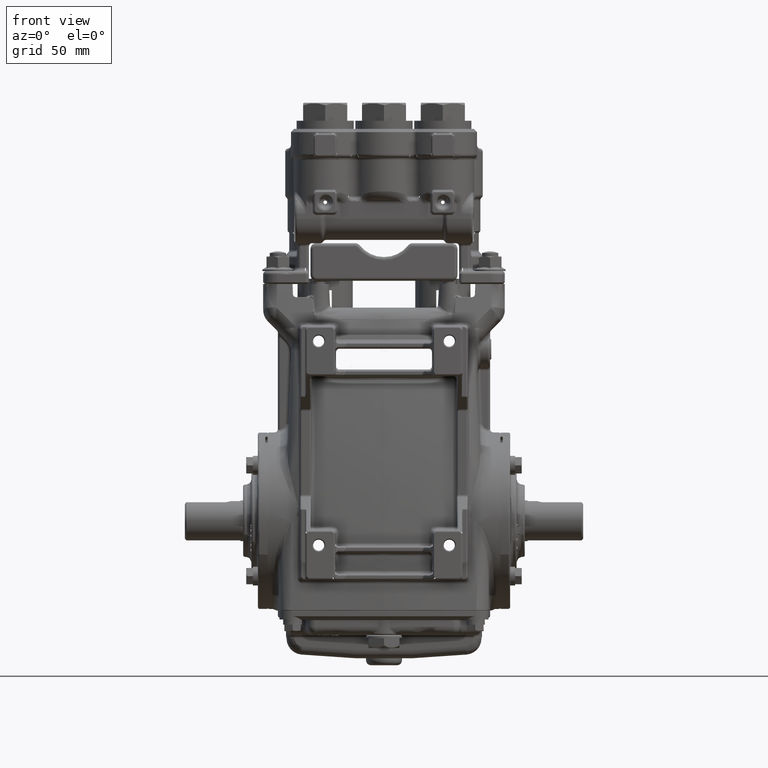
[diagram: clean part render]
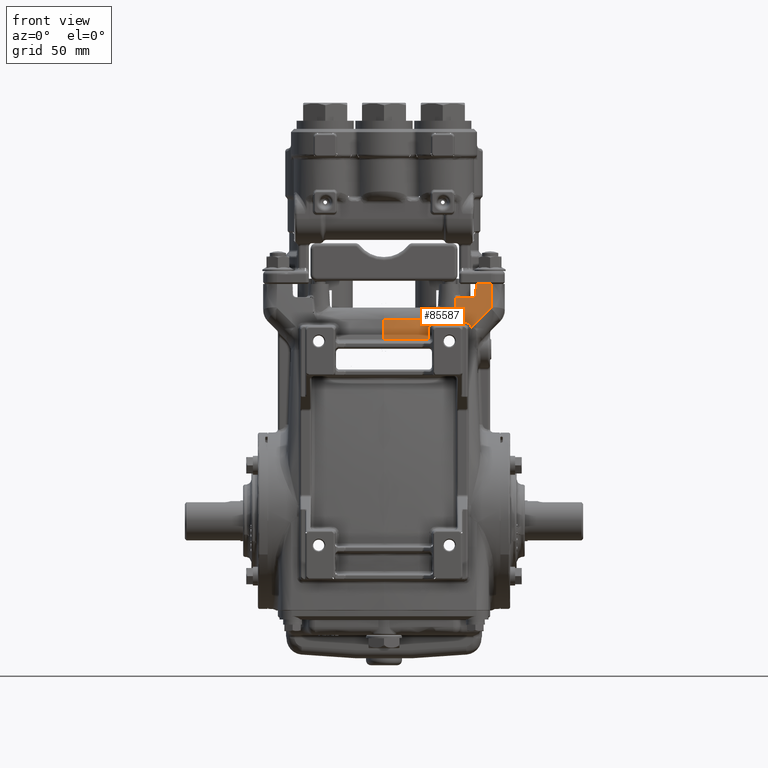
[diagram: same view with one face highlighted and labeled with its STEP entity id]
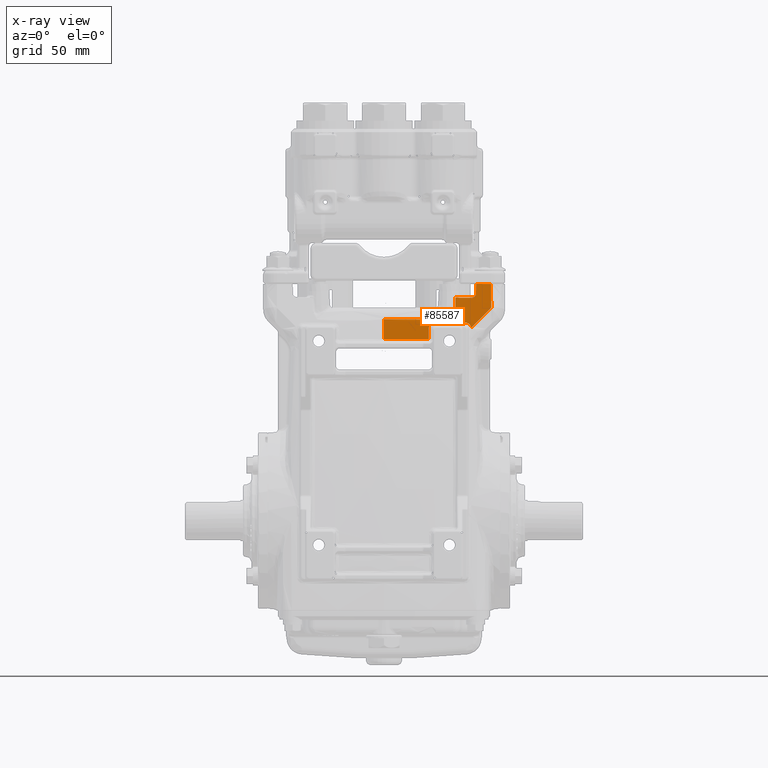
[diagram: x-ray of the same camera — body ghosted, the highlighted face saturated]
A machine part, front view. The second image highlights one B-rep face of the part: STEP entity #85587.
The next image is the same camera in x-ray: the body ghosted, the highlighted face saturated — about 0% of this face is hidden behind the body in this view.
In plain terms, the highlighted face is a freeform B-spline surface patch.
Its self-contained STEP definition (entity closure, byte-faithful):
#237 = CARTESIAN_POINT ( 'NONE',  ( 1.695447004468811025, -1.422108094650450072, 4.988307466326080686 ) ) ;
#280 = CARTESIAN_POINT ( 'NONE',  ( 2.075517072304949195, -1.453196763443851847, 4.717388431576400087 ) ) ;
#408 = CARTESIAN_POINT ( 'NONE',  ( 2.105072701590586792, -1.463353995759773651, 4.654363746525441492 ) ) ;
#427 = EDGE_CURVE ( 'NONE', #68387, #84993, #65699, .T. ) ;
#478 = CARTESIAN_POINT ( 'NONE',  ( 5.353948352643644109E-17, -1.600492787119488725, 4.379707716610888646 ) ) ;
#525 = CARTESIAN_POINT ( 'NONE',  ( 0.2386529819870311930, -2.400899943846322770, -2.165354330708661568 ) ) ;
#830 = CARTESIAN_POINT ( 'NONE',  ( 1.747981815849881215, -1.334178343351362095, 5.386980903244986685 ) ) ;
#844 = CARTESIAN_POINT ( 'NONE',  ( 1.970108780992997133, -1.448916258621498754, 4.775992038015377084 ) ) ;
#1099 = CARTESIAN_POINT ( 'NONE',  ( 0.7593239362273180859, -2.393134938270132572, -2.165354330708661568 ) ) ;
#1218 = VERTEX_POINT ( 'NONE', #478 ) ;
#1307 = CARTESIAN_POINT ( 'NONE',  ( 2.225298927775545721, -1.240190851378258241, 5.708661417322828946 ) ) ;
#1681 = CARTESIAN_POINT ( 'NONE',  ( -1.120923444174017236, -1.894876309026141348, 3.127925920230727019 ) ) ;
#2010 = CARTESIAN_POINT ( 'NONE',  ( 2.093934674572589749, -1.457693663488794034, 4.687614378569230134 ) ) ;
#2254 = CARTESIAN_POINT ( 'NONE',  ( -0.3931574066697895442, -2.399831511276513840, -2.165354330708661568 ) ) ;
#2476 = CARTESIAN_POINT ( 'NONE',  ( 1.974696223463358269, -1.324438073273989103, 5.378110723654810243 ) ) ;
#2516 = CARTESIAN_POINT ( 'NONE',  ( 9.581174933279260502E-09, -1.532602765210235862, 4.700192344501700425 ) ) ;
#2731 = B_SPLINE_CURVE_WITH_KNOTS ( 'NONE', 3,
 ( #113924, #104176, #51211, #26409 ),
 .UNSPECIFIED., .F., .F.,
 ( 4, 4 ),
 ( 5.763878168445254235E-17, 0.001893212023232310626 ),
 .UNSPECIFIED. ) ;
#2931 = EDGE_CURVE ( 'NONE', #59065, #1218, #74819, .T. ) ;
#3440 = B_SPLINE_CURVE_WITH_KNOTS ( 'NONE', 3,
 ( #22520, #110629, #92242, #24218, #31742, #57155, #100878, #57707, #30619, #58848, #40940, #49040, #66898, #59398, #84126, #41491, #111183, #48454 ),
 .UNSPECIFIED., .F., .F.,
 ( 4, 2, 2, 2, 2, 2, 2, 2, 4 ),
 ( 0.000000000000000000, 0.0007965545123860078534, 0.001593109024772015707, 0.002389663537158023560, 0.003186218049544031414, 0.003982772561930039701, 0.004779327074316047121, 0.005575881586702054540, 0.006372436099088062827 ),
 .UNSPECIFIED. ) ;
#3661 = CARTESIAN_POINT ( 'NONE',  ( 1.706872822841963178, -1.415508902010688130, 5.016785960608056705 ) ) ;
#3795 = CARTESIAN_POINT ( 'NONE',  ( 2.217687854067777131, -1.287471127560731343, 5.487445985151845562 ) ) ;
#3939 = CARTESIAN_POINT ( 'NONE',  ( 2.686370785910845438, -2.084068835673706488, 0.4897784465330251580 ) ) ;
#5068 = CARTESIAN_POINT ( 'NONE',  ( 2.369125755900590491, -1.232386614232148236, 5.708661417322822729 ) ) ;
#5452 = B_SPLINE_CURVE_WITH_KNOTS ( 'NONE', 3,
 ( #86285, #84591, #111082, #58739 ),
 .UNSPECIFIED., .F., .F.,
 ( 4, 4 ),
 ( 0.000000000000000000, 0.01840378158235755901 ),
 .UNSPECIFIED. ) ;
#5457 = ORIENTED_EDGE ( 'NONE', *, *, #8755, .T. ) ;
#5825 = CARTESIAN_POINT ( 'NONE',  ( 1.722704174765727902, -1.360497997444408247, 5.271718377526075194 ) ) ;
#6324 = CARTESIAN_POINT ( 'NONE',  ( -2.523490070267367269, -1.223445930611730459, 5.708661417322837828 ) ) ;
#7063 = CARTESIAN_POINT ( 'NONE',  ( 1.073092921287555068, -1.577856869924249450, 4.380521288988022732 ) ) ;
#7443 = B_SPLINE_CURVE_WITH_KNOTS ( 'NONE', 3,
 ( #69285, #50860, #104396, #95738 ),
 .UNSPECIFIED., .F., .F.,
 ( 4, 4 ),
 ( 0.000000000000000000, 0.01443161753748584304 ),
 .UNSPECIFIED. ) ;
#7460 = CARTESIAN_POINT ( 'NONE',  ( -2.913385826771640374, -2.265344068576862213, -2.165354330708661124 ) ) ;
#8584 = CARTESIAN_POINT ( 'NONE',  ( -1.798349607840901365, -2.349958156103969742, -2.165354330708661124 ) ) ;
#8755 = EDGE_CURVE ( 'NONE', #1218, #52566, #25717, .T. ) ;
#8837 = VERTEX_POINT ( 'NONE', #106197 ) ;
#8893 = CARTESIAN_POINT ( 'NONE',  ( 1.723487483204693138, -1.340369068419941634, 5.363991443585114816 ) ) ;
#9158 = CARTESIAN_POINT ( 'NONE',  ( -1.062078202322136677, -2.384053432892072166, -2.165354330708661124 ) ) ;
#9724 = CARTESIAN_POINT ( 'NONE',  ( -0.3973269798802264163, -2.297068369690841383, 0.4897784465330322634 ) ) ;
#10036 = CARTESIAN_POINT ( 'NONE',  ( 2.105072701590586792, -1.463353995759773651, 4.654363746525441492 ) ) ;
#10287 = CARTESIAN_POINT ( 'NONE',  ( 1.438329920831149300, -2.368889522099581146, -2.165354330708661568 ) ) ;
#10305 = CARTESIAN_POINT ( 'NONE',  ( 1.721600411979225642, -1.396638761318250932, 5.102518274922981156 ) ) ;
#10469 = CARTESIAN_POINT ( 'NONE',  ( 2.217191579026701387, -1.290516498742154905, 5.473030347281832242 ) ) ;
#10609 = CARTESIAN_POINT ( 'NONE',  ( 2.203232500324834309, -1.301296428483942558, 5.425410671452346456 ) ) ;
#10832 = EDGE_CURVE ( 'NONE', #57125, #29284, #3440, .T. ) ;
#10874 = CARTESIAN_POINT ( 'NONE',  ( -1.741295670112182004, -1.263397575016607766, 5.708661417322819176 ) ) ;
#10998 = EDGE_LOOP ( 'NONE', ( #29271, #54080, #104098, #44061, #5457, #55631, #40922, #48487, #51431, #67671, #27820, #28957, #64570, #93263, #61188, #42133, #76089, #97087, #71932, #25310, #88906, #93702 ) ) ;
#11099 = CARTESIAN_POINT ( 'NONE',  ( 2.105718740610707407, -1.316990519298782747, 5.378053934162385197 ) ) ;
#11543 = EDGE_CURVE ( 'NONE', #73235, #68387, #34833, .T. ) ;
#11970 = VERTEX_POINT ( 'NONE', #35885 ) ;
#12027 = CARTESIAN_POINT ( 'NONE',  ( 2.122645617507046278, -1.458368836832121485, 4.673282959559445615 ) ) ;
#12182 = B_SPLINE_CURVE_WITH_KNOTS ( 'NONE', 3,
 ( #1307, #97539, #73348, #26703 ),
 .UNSPECIFIED., .F., .F.,
 ( 4, 4 ),
 ( 0.8818015310196152257, 0.9427955619806043241 ),
 .UNSPECIFIED. ) ;
#12566 = CARTESIAN_POINT ( 'NONE',  ( 2.848460234453432882, -2.059014184365170586, 0.4897784465330218828 ) ) ;
#13344 = CARTESIAN_POINT ( 'NONE',  ( 1.814286184004190394, -1.332820085805407784, 5.378174502459382111 ) ) ;
#13681 = CARTESIAN_POINT ( 'NONE',  ( 1.964095400574094485, -1.820132787096655713, 3.127925920230754109 ) ) ;
#13991 = CARTESIAN_POINT ( 'NONE',  ( 1.072586018474553704, -1.540557774957428183, 4.562259323787783316 ) ) ;
#14184 = CARTESIAN_POINT ( 'NONE',  ( 2.586414713598422566, -1.330825672831741580, 5.146055740934847300 ) ) ;
#14396 = CARTESIAN_POINT ( 'NONE',  ( -2.841641326625985009, -1.202961639721772391, 5.708661417322835163 ) ) ;
#14960 = CARTESIAN_POINT ( 'NONE',  ( -2.450684691601668241, -2.118214908375335881, 0.4897784465330197179 ) ) ;
#15143 = EDGE_CURVE ( 'NONE', #84993, #52751, #39953, .T. ) ;
#15468 = EDGE_CURVE ( 'NONE', #29284, #73235, #5452, .T. ) ;
#15877 = CARTESIAN_POINT ( 'NONE',  ( 1.080392792477687269, -1.478895006806082657, 4.858076387095712434 ) ) ;
#17243 = CARTESIAN_POINT ( 'NONE',  ( 1.523571933390371225, -1.864023738764603477, 3.127925920230739010 ) ) ;
#17520 = CARTESIAN_POINT ( 'NONE',  ( 1.706872822841963178, -1.415508902010688130, 5.016785960608056705 ) ) ;
#17813 = CARTESIAN_POINT ( 'NONE',  ( -0.1449627675236092594, -1.299212598425193654, 5.708661417322835163 ) ) ;
#18230 = CARTESIAN_POINT ( 'NONE',  ( 2.224858536579188861, -1.242970063600507213, 5.695838293977645073 ) ) ;
#18237 = EDGE_CURVE ( 'NONE', #52566, #57125, #97054, .T. ) ;
#18388 = CARTESIAN_POINT ( 'NONE',  ( -1.150346110494639085, -1.283976514928853341, 5.708661417322789866 ) ) ;
#18946 = CARTESIAN_POINT ( 'NONE',  ( 1.742463560137305301, -1.843263351871661904, 3.127925920230746559 ) ) ;
#19219 = CARTESIAN_POINT ( 'NONE',  ( 1.710141671066009339, -1.413445833383627059, 5.025765057855136497 ) ) ;
#19242 = CARTESIAN_POINT ( 'NONE',  ( 2.150185035819121460, -1.313337084266615218, 5.382946699796166357 ) ) ;
#19521 = CARTESIAN_POINT ( 'NONE',  ( 0.1019499836553659500, -1.299212598425201870, 5.708661417322835163 ) ) ;
#21551 = CARTESIAN_POINT ( 'NONE',  ( 2.144018744286798395, -1.314089596595189757, 5.381104746999962885 ) ) ;
#21813 = CARTESIAN_POINT ( 'NONE',  ( 2.240980235268056564, -2.321187910974374269, -2.165354330708661568 ) ) ;
#22369 = CARTESIAN_POINT ( 'NONE',  ( 2.225298927775545721, -1.240190851378258241, 5.708661417322828946 ) ) ;
#22520 = CARTESIAN_POINT ( 'NONE',  ( 1.072431235905899394, -1.529109700601100519, 4.617170957768486517 ) ) ;
#22861 = CARTESIAN_POINT ( 'NONE',  ( 2.585437472689655625, -1.331889233755624291, 5.140939031673726234 ) ) ;
#23710 = CARTESIAN_POINT ( 'NONE',  ( 2.580421327975271240, -1.219814287179225243, 5.708661417322838716 ) ) ;
#23712 = EDGE_CURVE ( 'NONE', #102477, #87797, #93417, .T. ) ;
#24215 = CARTESIAN_POINT ( 'NONE',  ( -2.812979403157047642, -2.274754709963543675, -2.165354330708661124 ) ) ;
#24218 = CARTESIAN_POINT ( 'NONE',  ( 1.077261521428881652, -1.520411852318828361, 4.657784040469648446 ) ) ;
#24378 = CARTESIAN_POINT ( 'NONE',  ( 1.072950483581206926, -1.567414980036824446, 4.431965603632755268 ) ) ;
#25011 = CARTESIAN_POINT ( 'NONE',  ( 0.3578149186057127951, -1.600492783429321886, 4.379707716609932078 ) ) ;
#25310 = ORIENTED_EDGE ( 'NONE', *, *, #47983, .T. ) ;
#25477 = CARTESIAN_POINT ( 'NONE',  ( 1.793277183352211201, -1.333641000619514738, 5.379246555982696520 ) ) ;
#25669 = CARTESIAN_POINT ( 'NONE',  ( 1.726294129361458429, -1.338649076078404221, 5.371263982266716752 ) ) ;
#25717 = B_SPLINE_CURVE_WITH_KNOTS ( 'NONE', 3,
 ( #33660, #25011, #52113, #95279 ),
 .UNSPECIFIED., .F., .F.,
 ( 4, 4 ),
 ( 4.745017215521428820E-19, 0.02726535390388513599 ),
 .UNSPECIFIED. ) ;
#25804 = B_SPLINE_SURFACE_WITH_KNOTS ( 'NONE', 3, 3, ( 
 ( #7460, #51877, #85809, #32290 ),
 ( #24215, #93359, #50171, #14396 ),
 ( #49609, #84692, #67461, #102570 ),
 ( #93921, #14960, #85255, #6324 ),
 ( #41488, #80611, #61112, #96175 ),
 ( #35141, #26500, #70284, #28223 ),
 ( #8584, #105407, #27078, #97323 ),
 ( #114015, #107118, #96754, #10874 ),
 ( #45498, #63384, #61673, #98458 ),
 ( #9158, #88681, #1681, #18388 ),
 ( #89838, #88110, #37426, #89250 ),
 ( #2254, #9724, #36848, #46080 ),
 ( #44894, #62245, #79463, #17813 ),
 ( #54177, #72007, #44338, #19521 ),
 ( #525, #35702, #53025, #70844 ),
 ( #54746, #97902, #81180, #105970 ),
 ( #1099, #80026, #72569, #25932 ),
 ( #36280, #106540, #53608, #71435 ),
 ( #10287, #52439, #17243, #87523 ),
 ( #27651, #62830, #18946, #43770 ),
 ( #78897, #92093, #13681, #108250 ),
 ( #82299, #74252, #101291, #74811 ),
 ( #21813, #109914, #99037, #5068 ),
 ( #66199, #83979, #81741, #65634 ),
 ( #40222, #3939, #83410, #91537 ),
 ( #48312, #12566, #109352, #55327 ),
 ( #47765, #92651, #90411, #47205 ) ),
 .UNSPECIFIED., .F., .F., .F.,
 ( 4, 1, 1, 1, 1, 1, 1, 1, 1, 1, 1, 2, 1, 1, 1, 1, 1, 1, 1, 1, 1, 1, 1, 4 ),
 ( 4, 4 ),
 ( 0.1820721574386664487, 0.1959246563835279065, 0.2035427212275890407, 0.2193976784518300027, 0.2310405802590582147, 0.2359332488469739197, 0.2508238822397266254, 0.2638475608825300855, 0.2796596398469345934, 0.2995163485322877017, 0.3173264764016465178, 0.3410360787193327248, 0.3577107850873240125, 0.3637457220820375925, 0.3805901526646463529, 0.4065920388027236543, 0.4224714650153005291, 0.4387315542144890612, 0.4421836685404009204, 0.4588536976265763512, 0.4664841599499357505, 0.4748837514135769711, 0.4901004416486962612, 0.5000000000000002220 ),
 ( 0.000000000000000000, 1.000000000000000000 ),
 .UNSPECIFIED. ) ;
#25932 = CARTESIAN_POINT ( 'NONE',  ( 0.8095103919857099539, -1.292140362101247275, 5.708661417322844045 ) ) ;
#25945 = CARTESIAN_POINT ( 'NONE',  ( 1.782922231577828143, -1.333694683007381698, 5.381355294301616077 ) ) ;
#26409 = CARTESIAN_POINT ( 'NONE',  ( 1.711343548344323784, -1.412407386300849055, 5.030395126341209000 ) ) ;
#26500 = CARTESIAN_POINT ( 'NONE',  ( -2.037265628463426737, -2.172062645620671084, 0.4897784465330257131 ) ) ;
#26703 = CARTESIAN_POINT ( 'NONE',  ( 2.580421327975271240, -1.219814287179225243, 5.708661417322838716 ) ) ;
#26920 = CARTESIAN_POINT ( 'NONE',  ( 2.225299536755475760, -1.240202993220924421, 5.708660648073941246 ) ) ;
#27078 = CARTESIAN_POINT ( 'NONE',  ( -1.895214259565355164, -1.827571154474286530, 3.127925920230762102 ) ) ;
#27651 = CARTESIAN_POINT ( 'NONE',  ( 1.648708095812247754, -2.358238290425402450, -2.165354330708661568 ) ) ;
#27820 = ORIENTED_EDGE ( 'NONE', *, *, #15143, .T. ) ;
#28061 = CARTESIAN_POINT ( 'NONE',  ( 2.222212098191402863, -1.259520473002489815, 5.618902597148461631 ) ) ;
#28223 = CARTESIAN_POINT ( 'NONE',  ( -2.132997294791505460, -1.245100427256945474, 5.708661417322859144 ) ) ;
#28810 = CARTESIAN_POINT ( 'NONE',  ( 1.073092921287555068, -1.577856869924249450, 4.380521288988022732 ) ) ;
#28957 = ORIENTED_EDGE ( 'NONE', *, *, #77379, .T. ) ;
#29029 = CARTESIAN_POINT ( 'NONE',  ( 1.922276981058850698, -1.327230367781236042, 5.378131974289340533 ) ) ;
#29271 = ORIENTED_EDGE ( 'NONE', *, *, #105830, .T. ) ;
#29284 = VERTEX_POINT ( 'NONE', #91792 ) ;
#30619 = CARTESIAN_POINT ( 'NONE',  ( 1.110259968350603588, -1.505859197377566572, 4.720795264503578004 ) ) ;
#30730 = VERTEX_POINT ( 'NONE', #109300 ) ;
#30964 = CARTESIAN_POINT ( 'NONE',  ( 2.586363487242617332, -1.329823541424705491, 5.151270073071822608 ) ) ;
#31742 = CARTESIAN_POINT ( 'NONE',  ( 1.080195572947305394, -1.518222662354437258, 4.667661603721832364 ) ) ;
#32290 = CARTESIAN_POINT ( 'NONE',  ( -2.913385826771655474, -1.197969208711458178, 5.708661417322835163 ) ) ;
#32897 = CARTESIAN_POINT ( 'NONE',  ( 2.574975106018726922, -1.336104207299929847, 5.123366275014468840 ) ) ;
#32992 = EDGE_CURVE ( 'NONE', #33424, #74782, #50621, .T. ) ;
#33424 = VERTEX_POINT ( 'NONE', #108617 ) ;
#33660 = CARTESIAN_POINT ( 'NONE',  ( 5.353948352643644109E-17, -1.600492787119488725, 4.379707716610888646 ) ) ;
#34108 = CARTESIAN_POINT ( 'NONE',  ( 1.814286184004190394, -1.332820085805407784, 5.378174502459382111 ) ) ;
#34419 = CARTESIAN_POINT ( 'NONE',  ( 2.225299510298643479, -1.240203159225248930, 5.708659878825060652 ) ) ;
#34508 = B_SPLINE_CURVE_WITH_KNOTS ( 'NONE', 3,
 ( #25945, #94489, #61126, #68605 ),
 .UNSPECIFIED., .F., .F.,
 ( 4, 4 ),
 ( 0.000000000000000000, 0.0007962539155344857018 ),
 .UNSPECIFIED. ) ;
#34833 = B_SPLINE_CURVE_WITH_KNOTS ( 'NONE', 3,
 ( #97076, #44097, #844, #61440, #55083, #52783, #37178, #54499, #62581, #98795, #88998, #280, #35468, #71181, #2010, #70604, #81506, #10036 ),
 .UNSPECIFIED., .F., .F.,
 ( 4, 2, 2, 2, 2, 2, 2, 2, 4 ),
 ( 6.938893903907228378E-18, 0.0006760406778326393407, 0.001352081355665271743, 0.002028122033497904361, 0.002704162711330536546, 0.003380203389163168731, 0.004056244066995801784, 0.004732284744828433969, 0.005408325422661066154 ),
 .UNSPECIFIED. ) ;
#35141 = CARTESIAN_POINT ( 'NONE',  ( -1.989399371181372889, -2.338284998638616496, -2.165354330708661124 ) ) ;
#35468 = CARTESIAN_POINT ( 'NONE',  ( 2.080809879400427498, -1.454218590960656643, 4.710238014527305950 ) ) ;
#35702 = CARTESIAN_POINT ( 'NONE',  ( 0.2402441229366550357, -2.299342540392105505, 0.4897784465330115022 ) ) ;
#35885 = CARTESIAN_POINT ( 'NONE',  ( 1.814286184004190394, -1.332820085805407784, 5.378174502459382111 ) ) ;
#36018 = CARTESIAN_POINT ( 'NONE',  ( 1.736812986606233844, -1.335636033210475748, 5.382763689904396465 ) ) ;
#36280 = CARTESIAN_POINT ( 'NONE',  ( 1.099363582922382898, -2.382977130700381085, -2.165354330708661568 ) ) ;
#36581 = CARTESIAN_POINT ( 'NONE',  ( 2.216757264246910886, -1.293181653353143723, 5.460414511165049944 ) ) ;
#36848 = CARTESIAN_POINT ( 'NONE',  ( -0.4014957656440683587, -1.927885586440233778, 3.127925920230790080 ) ) ;
#37119 = CARTESIAN_POINT ( 'NONE',  ( -1.165462141680392853E-08, -1.567049787758275858, 4.540046112685075741 ) ) ;
#37178 = CARTESIAN_POINT ( 'NONE',  ( 2.020938564557486217, -1.448370912080410022, 4.761333360718126961 ) ) ;
#37426 = CARTESIAN_POINT ( 'NONE',  ( -0.7853088048963520196, -1.913828282296069494, 3.127925920230730128 ) ) ;
#37836 = CARTESIAN_POINT ( 'NONE',  ( 2.220446664038848716, -1.270478268821263246, 5.567595797694324666 ) ) ;
#38297 = CARTESIAN_POINT ( 'NONE',  ( 2.131857811152471527, -1.455898729892387111, 4.682448221176986891 ) ) ;
#39953 = B_SPLINE_CURVE_WITH_KNOTS ( 'NONE', 3,
 ( #38297, #58300, #43230, #32897 ),
 .UNSPECIFIED., .F., .F.,
 ( 4, 4 ),
 ( 0.000000000000000000, 0.01616670382802528477 ),
 .UNSPECIFIED. ) ;
#40222 = CARTESIAN_POINT ( 'NONE',  ( 2.664582750533178945, -2.288033759751159746, -2.165354330708661568 ) ) ;
#40922 = ORIENTED_EDGE ( 'NONE', *, *, #10832, .T. ) ;
#40940 = CARTESIAN_POINT ( 'NONE',  ( 1.132575402840494405, -1.500473300881341565, 4.742137572600174877 ) ) ;
#41488 = CARTESIAN_POINT ( 'NONE',  ( -2.189576524486962494, -2.325080261920545954, -2.165354330708661124 ) ) ;
#41491 = CARTESIAN_POINT ( 'NONE',  ( 1.208076077040557861, -1.490664904009200598, 4.774070189874325187 ) ) ;
#41618 = B_SPLINE_CURVE_WITH_KNOTS ( 'NONE', 3,
 ( #70086, #52812, #15877, #78122, #113801, #87304 ),
 .UNSPECIFIED., .F., .F.,
 ( 4, 2, 4 ),
 ( 0.002095153710632045169, 0.02267970435462860271, 0.04326425499862515678 ),
 .UNSPECIFIED. ) ;
#42133 = ORIENTED_EDGE ( 'NONE', *, *, #48555, .T. ) ;
#42577 = CARTESIAN_POINT ( 'NONE',  ( 1.850285873599028186, -1.331010898088781369, 5.378160739918143030 ) ) ;
#43230 = CARTESIAN_POINT ( 'NONE',  ( 2.427291514755221424, -1.376123651622198185, 4.976395197955953087 ) ) ;
#43770 = CARTESIAN_POINT ( 'NONE',  ( 1.789341252083286316, -1.261249471572276626, 5.708661417322813847 ) ) ;
#43904 = EDGE_CURVE ( 'NONE', #46235, #55681, #7443, .T. ) ;
#44050 = CARTESIAN_POINT ( 'NONE',  ( 1.620100908794973149, -1.453906116151964634, 4.855422552802820313 ) ) ;
#44061 = ORIENTED_EDGE ( 'NONE', *, *, #2931, .T. ) ;
#44097 = CARTESIAN_POINT ( 'NONE',  ( 1.961275411743053532, -1.449361632755252982, 4.776722778853954132 ) ) ;
#44338 = CARTESIAN_POINT ( 'NONE',  ( 0.1019719231317475494, -1.931427949591510096, 3.127925920230758550 ) ) ;
#44894 = CARTESIAN_POINT ( 'NONE',  ( -0.1450532115828236657, -2.401574803149604254, -2.165354330708661568 ) ) ;
#45498 = CARTESIAN_POINT ( 'NONE',  ( -1.345329668388606015, -2.372960332906651093, -2.165354330708661124 ) ) ;
#45771 = CARTESIAN_POINT ( 'NONE',  ( 5.353948352643644109E-17, -1.600492787119488725, 4.379707716610888646 ) ) ;
#45784 = CARTESIAN_POINT ( 'NONE',  ( 1.651769026602168289, -1.441304388503606537, 4.907781706576454184 ) ) ;
#46080 = CARTESIAN_POINT ( 'NONE',  ( -0.4056649939589589970, -1.297898323476696980, 5.708661417322884901 ) ) ;
#46235 = VERTEX_POINT ( 'NONE', #107837 ) ;
#46300 = CARTESIAN_POINT ( 'NONE',  ( 2.027109477794701409, -1.321530991777925212, 5.378088585514736231 ) ) ;
#46487 = CARTESIAN_POINT ( 'NONE',  ( 2.217191579026701387, -1.290516498742154905, 5.473030347281832242 ) ) ;
#47205 = CARTESIAN_POINT ( 'NONE',  ( 2.913385826771652809, -1.197969208711458178, 5.708661417322836940 ) ) ;
#47480 = CARTESIAN_POINT ( 'NONE',  ( 1.708654828045138352, -1.414479671960220841, 5.021227552740173294 ) ) ;
#47502 = CARTESIAN_POINT ( 'NONE',  ( 2.183041362756662718, -1.307478888481968138, 5.401584287586975286 ) ) ;
#47765 = CARTESIAN_POINT ( 'NONE',  ( 2.913385826771654141, -2.265344068576858216, -2.165354330708661568 ) ) ;
#47978 = CARTESIAN_POINT ( 'NONE',  ( 1.620100908794973149, -1.453906116151964634, 4.855422552802820313 ) ) ;
#47983 = EDGE_CURVE ( 'NONE', #30730, #76323, #51943, .T. ) ;
#48312 = CARTESIAN_POINT ( 'NONE',  ( 2.841633460699814151, -2.272069094341539142, -2.165354330708661568 ) ) ;
#48454 = CARTESIAN_POINT ( 'NONE',  ( 1.228927318074536146, -1.489561126532687352, 4.775157596980935004 ) ) ;
#48487 = ORIENTED_EDGE ( 'NONE', *, *, #15468, .T. ) ;
#48555 = EDGE_CURVE ( 'NONE', #87797, #104777, #71239, .T. ) ;
#49040 = CARTESIAN_POINT ( 'NONE',  ( 1.149618821076130670, -1.497337084768479709, 4.753767661150873458 ) ) ;
#49609 = CARTESIAN_POINT ( 'NONE',  ( -2.663295530942337397, -2.288034568519342837, -2.165354330708661124 ) ) ;
#50171 = CARTESIAN_POINT ( 'NONE',  ( -2.832087334218518215, -1.704813401921120075, 3.127925920230760770 ) ) ;
#50190 = EDGE_CURVE ( 'NONE', #76323, #90185, #109324, .T. ) ;
#50621 = B_SPLINE_CURVE_WITH_KNOTS ( 'NONE', 3,
 ( #17520, #237, #97032, #45784, #106242, #44050 ),
 .UNSPECIFIED., .F., .F.,
 ( 4, 2, 4 ),
 ( 2.943923360032077975E-17, 0.002377383041104256124, 0.004754766082208482757 ),
 .UNSPECIFIED. ) ;
#50860 = CARTESIAN_POINT ( 'NONE',  ( 2.584536379679437612, -1.294080185405673600, 5.337251401134090578 ) ) ;
#51211 = CARTESIAN_POINT ( 'NONE',  ( 1.717481129432713249, -1.407104387990177230, 5.054039321377360672 ) ) ;
#51296 = FACE_OUTER_BOUND ( 'NONE', #10998, .T. ) ;
#51431 = ORIENTED_EDGE ( 'NONE', *, *, #11543, .T. ) ;
#51583 = CARTESIAN_POINT ( 'NONE',  ( 2.131857811152471527, -1.455898729892387111, 4.682448221176986891 ) ) ;
#51760 = CARTESIAN_POINT ( 'NONE',  ( 2.574975106018726922, -1.336104207299929847, 5.123366275014468840 ) ) ;
#51877 = CARTESIAN_POINT ( 'NONE',  ( -2.913386025391116796, -2.048762232609160350, 0.4897784465330197179 ) ) ;
#51942 = VERTEX_POINT ( 'NONE', #101290 ) ;
#51943 = B_SPLINE_CURVE_WITH_KNOTS ( 'NONE', 3,
 ( #113759, #830, #88427, #36018, #71167, #61987, #25669, #8893, #80347, #88985 ),
 .UNSPECIFIED., .F., .F.,
 ( 4, 2, 2, 2, 4 ),
 ( 1.387778780781445521E-17, 0.0003027454738949971261, 0.0006054909477899803744, 0.0009082364216849636226, 0.001210981895579946871 ),
 .UNSPECIFIED. ) ;
#52113 = CARTESIAN_POINT ( 'NONE',  ( 0.7155857941311315473, -1.592653500228776275, 4.379995859350193754 ) ) ;
#52439 = CARTESIAN_POINT ( 'NONE',  ( 1.480950586178898964, -2.231805334558659037, 0.4897784465330071724 ) ) ;
#52566 = VERTEX_POINT ( 'NONE', #28810 ) ;
#52751 = VERTEX_POINT ( 'NONE', #51760 ) ;
#52783 = CARTESIAN_POINT ( 'NONE',  ( 2.012909048595399319, -1.448208099751369327, 4.764942719449856590 ) ) ;
#52812 = CARTESIAN_POINT ( 'NONE',  ( 1.350326807458474887, -1.468162027508103096, 4.856919799504730406 ) ) ;
#53025 = CARTESIAN_POINT ( 'NONE',  ( 0.2418360551790647572, -1.930064199602339103, 3.127925920230748780 ) ) ;
#53608 = CARTESIAN_POINT ( 'NONE',  ( 1.161614335099258266, -1.892574789840514082, 3.127925920230770540 ) ) ;
#54080 = ORIENTED_EDGE ( 'NONE', *, *, #32992, .T. ) ;
#54177 = CARTESIAN_POINT ( 'NONE',  ( 0.1020157036538342499, -2.401574803149599369, -2.165354330708661568 ) ) ;
#54499 = CARTESIAN_POINT ( 'NONE',  ( 2.036426301086297297, -1.449003076438874604, 4.752711269429642726 ) ) ;
#54746 = CARTESIAN_POINT ( 'NONE',  ( 0.4731394191495167378, -2.398237061164401940, -2.165354330708661568 ) ) ;
#55083 = CARTESIAN_POINT ( 'NONE',  ( 1.996290074147607951, -1.448183904672722289, 4.770785979313756364 ) ) ;
#55327 = CARTESIAN_POINT ( 'NONE',  ( 2.862114397419989853, -1.201536995417320064, 5.708661417322835163 ) ) ;
#55623 = CARTESIAN_POINT ( 'NONE',  ( 2.192016663956590783, -1.305115962173842847, 5.410327628582813908 ) ) ;
#55631 = ORIENTED_EDGE ( 'NONE', *, *, #18237, .T. ) ;
#55681 = VERTEX_POINT ( 'NONE', #23710 ) ;
#56439 = EDGE_CURVE ( 'NONE', #74782, #59065, #41618, .T. ) ;
#56752 = CARTESIAN_POINT ( 'NONE',  ( 2.206321891031703508, -1.299961961405278865, 5.430919584262019484 ) ) ;
#57125 = VERTEX_POINT ( 'NONE', #90991 ) ;
#57155 = CARTESIAN_POINT ( 'NONE',  ( 1.087829918295206921, -1.513963123448836878, 4.686501579875510970 ) ) ;
#57707 = CARTESIAN_POINT ( 'NONE',  ( 1.103849926172684626, -1.507790552553654351, 4.712830274811794062 ) ) ;
#58300 = CARTESIAN_POINT ( 'NONE',  ( 2.279615739640361571, -1.416279731572705813, 4.829453388760477139 ) ) ;
#58739 = CARTESIAN_POINT ( 'NONE',  ( 1.952367831054959035, -1.449958732757505420, 4.776699653441751181 ) ) ;
#58848 = CARTESIAN_POINT ( 'NONE',  ( 1.124572904729152389, -1.502208888837055500, 4.735418960371210240 ) ) ;
#59065 = VERTEX_POINT ( 'NONE', #70343 ) ;
#59398 = CARTESIAN_POINT ( 'NONE',  ( 1.177727379786405404, -1.493448638293112252, 4.766799849255096255 ) ) ;
#59564 = CARTESIAN_POINT ( 'NONE',  ( 1.072663037943700770, -1.546240285000628933, 4.534794891777891301 ) ) ;
#59663 = EDGE_CURVE ( 'NONE', #102477, #55681, #12182, .T. ) ;
#61112 = CARTESIAN_POINT ( 'NONE',  ( -2.279253307875170886, -1.782954428840536565, 3.127925920230772761 ) ) ;
#61126 = CARTESIAN_POINT ( 'NONE',  ( 1.762334391188094429, -1.333925898087361617, 5.384948306559609321 ) ) ;
#61188 = ORIENTED_EDGE ( 'NONE', *, *, #23712, .T. ) ;
#61440 = CARTESIAN_POINT ( 'NONE',  ( 1.987627649643938899, -1.448325516172946692, 4.773029423439528074 ) ) ;
#61673 = CARTESIAN_POINT ( 'NONE',  ( -1.424768798695139616, -1.872199753906887310, 3.127925920230765211 ) ) ;
#61987 = CARTESIAN_POINT ( 'NONE',  ( 1.728354465506780402, -1.337819364343909356, 5.374615397184658860 ) ) ;
#62097 = CARTESIAN_POINT ( 'NONE',  ( 2.225299483841809423, -1.240203325229540576, 5.708659109576172952 ) ) ;
#62245 = CARTESIAN_POINT ( 'NONE',  ( -0.1450234440065840402, -2.300768595909192804, 0.4897784465330164427 ) ) ;
#62581 = CARTESIAN_POINT ( 'NONE',  ( 2.043835400069852870, -1.449474177362114480, 4.747706264456475367 ) ) ;
#62830 = CARTESIAN_POINT ( 'NONE',  ( 1.695585503688048057, -2.210467917730779330, 0.4897784465330109471 ) ) ;
#63120 = CARTESIAN_POINT ( 'NONE',  ( 2.217191579026701387, -1.290516498742154905, 5.473030347281832242 ) ) ;
#63384 = CARTESIAN_POINT ( 'NONE',  ( -1.385049581091524207, -2.240167768303173546, 0.4897784465330202730 ) ) ;
#63666 = CARTESIAN_POINT ( 'NONE',  ( 1.711343548344323784, -1.412407386300849055, 5.030395126341209000 ) ) ;
#64369 = CARTESIAN_POINT ( 'NONE',  ( 2.218184043943017159, -1.284420000957795516, 5.501860411293184150 ) ) ;
#64570 = ORIENTED_EDGE ( 'NONE', *, *, #43904, .T. ) ;
#65634 = CARTESIAN_POINT ( 'NONE',  ( 2.546430131488119031, -1.222062046991427398, 5.708661417322842269 ) ) ;
#65699 = B_SPLINE_CURVE_WITH_KNOTS ( 'NONE', 3,
 ( #82888, #66225, #12027, #91565 ),
 .UNSPECIFIED., .F., .F.,
 ( 4, 4 ),
 ( 0.01504984625997448505, 0.01605549334767787661 ),
 .UNSPECIFIED. ) ;
#65780 = B_SPLINE_CURVE_WITH_KNOTS ( 'NONE', 3,
 ( #100101, #73618, #101778, #22861, #14184, #30964 ),
 .UNSPECIFIED., .F., .F.,
 ( 4, 2, 4 ),
 ( 0.000000000000000000, 0.0003986968777286322135, 0.0007973937554572644269 ),
 .UNSPECIFIED. ) ;
#65821 = CARTESIAN_POINT ( 'NONE',  ( 1.721600411979225642, -1.396638761318250932, 5.102518274922981156 ) ) ;
#66199 = CARTESIAN_POINT ( 'NONE',  ( 2.441314665332592337, -2.306279735125314811, -2.165354330708661568 ) ) ;
#66225 = CARTESIAN_POINT ( 'NONE',  ( 2.113719599238204960, -1.460854016431075264, 4.663919834022189015 ) ) ;
#66898 = CARTESIAN_POINT ( 'NONE',  ( 1.158646098014652015, -1.495931476948292316, 4.758705619629515660 ) ) ;
#67461 = CARTESIAN_POINT ( 'NONE',  ( -2.706392384829026998, -1.723957603235172220, 3.127925920230758550 ) ) ;
#67671 = ORIENTED_EDGE ( 'NONE', *, *, #427, .T. ) ;
#68387 = VERTEX_POINT ( 'NONE', #408 ) ;
#68605 = CARTESIAN_POINT ( 'NONE',  ( 1.751987209595274653, -1.334107893090161534, 5.386413663578317745 ) ) ;
#68765 = CARTESIAN_POINT ( 'NONE',  ( 1.072807193565578521, -1.556876112255425326, 4.483390327195060365 ) ) ;
#69285 = CARTESIAN_POINT ( 'NONE',  ( 2.586363487242617332, -1.329823541424705491, 5.151270073071822608 ) ) ;
#70086 = CARTESIAN_POINT ( 'NONE',  ( 1.620100908794973149, -1.453906116151964634, 4.855422552802820313 ) ) ;
#70284 = CARTESIAN_POINT ( 'NONE',  ( -2.085131295870258139, -1.806265684984527997, 3.127925920230774981 ) ) ;
#70343 = CARTESIAN_POINT ( 'NONE',  ( 6.095349534079804422E-16, -1.497153048074948423, 4.860136922063759357 ) ) ;
#70604 = CARTESIAN_POINT ( 'NONE',  ( 2.100530536039535878, -1.460374864573726450, 4.671395897761284388 ) ) ;
#70844 = CARTESIAN_POINT ( 'NONE',  ( 0.2434275427088368471, -1.298707510032790280, 5.708661417322822729 ) ) ;
#71167 = CARTESIAN_POINT ( 'NONE',  ( 1.733620939072127110, -1.336310429804975053, 5.380374750228522629 ) ) ;
#71181 = CARTESIAN_POINT ( 'NONE',  ( 2.089989452193707464, -1.456462971425986019, 4.695382285239752207 ) ) ;
#71239 = B_SPLINE_CURVE_WITH_KNOTS ( 'NONE', 3,
 ( #63120, #36581, #71727, #56752, #10609, #98192, #55623, #47502, #90142, #91265, #107993, #19242, #21551, #99908, #82040, #82596 ),
 .UNSPECIFIED., .F., .F.,
 ( 4, 2, 2, 2, 2, 2, 2, 4 ),
 ( 0.000000000000000000, 0.0009786530921813585849, 0.001467979638272073331, 0.001957306184362788293, 0.002446632730453503039, 0.002935959276544217351, 0.003425285822634932531, 0.003914612368725647711 ),
 .UNSPECIFIED. ) ;
#71435 = CARTESIAN_POINT ( 'NONE',  ( 1.192739666030864010, -1.282981708238520646, 5.708661417322852927 ) ) ;
#71727 = CARTESIAN_POINT ( 'NONE',  ( 2.213871687814412237, -1.295948715829844167, 5.447984567152726498 ) ) ;
#71932 = ORIENTED_EDGE ( 'NONE', *, *, #106317, .T. ) ;
#72007 = CARTESIAN_POINT ( 'NONE',  ( 0.1019934165441796214, -2.300768595909192804, 0.4897784465330164427 ) ) ;
#72414 = CARTESIAN_POINT ( 'NONE',  ( 2.224417520747809185, -1.245732254816966922, 5.683016498614675172 ) ) ;
#72520 = B_SPLINE_CURVE_WITH_KNOTS ( 'NONE', 3,
 ( #90063, #11099, #72788, #107916, #46300, #2476, #29029, #99268, #42577, #13344 ),
 .UNSPECIFIED., .F., .F.,
 ( 4, 3, 3, 4 ),
 ( 1.387778780781445676E-17, 0.001000000151212620788, 0.005000018806650715145, 0.007746659996505261478 ),
 .UNSPECIFIED. ) ;
#72569 = CARTESIAN_POINT ( 'NONE',  ( 0.7927816049644672569, -1.913850617605292292, 3.127925920230765211 ) ) ;
#72788 = CARTESIAN_POINT ( 'NONE',  ( 2.092617560757028095, -1.317753261323262759, 5.378059757535799790 ) ) ;
#73235 = VERTEX_POINT ( 'NONE', #89834 ) ;
#73348 = CARTESIAN_POINT ( 'NONE',  ( 2.462064079051843546, -1.227102115073810618, 5.708661417322835163 ) ) ;
#73536 = CARTESIAN_POINT ( 'NONE',  ( 2.223976436569616411, -1.248489896371614449, 5.670193728004660372 ) ) ;
#73618 = CARTESIAN_POINT ( 'NONE',  ( 2.578672087457833051, -1.335102395645723750, 5.127045419998160547 ) ) ;
#74252 = CARTESIAN_POINT ( 'NONE',  ( 2.083726086542785794, -2.166614530041787390, 0.4897784465330164427 ) ) ;
#74782 = VERTEX_POINT ( 'NONE', #47978 ) ;
#74811 = CARTESIAN_POINT ( 'NONE',  ( 2.179242577519481916, -1.242815352902275405, 5.708661417322825393 ) ) ;
#74819 = B_SPLINE_CURVE_WITH_KNOTS ( 'NONE', 3,
 ( #91800, #2516, #37119, #45771 ),
 .UNSPECIFIED., .F., .F.,
 ( 4, 4 ),
 ( 0.02211906355351447515, 0.03459951899258448954 ),
 .UNSPECIFIED. ) ;
#76089 = ORIENTED_EDGE ( 'NONE', *, *, #94775, .T. ) ;
#76185 = CARTESIAN_POINT ( 'NONE',  ( 1.803731077617933831, -1.333350539513109556, 5.378178537635477596 ) ) ;
#76323 = VERTEX_POINT ( 'NONE', #104228 ) ;
#77379 = EDGE_CURVE ( 'NONE', #52751, #46235, #65780, .T. ) ;
#78122 = CARTESIAN_POINT ( 'NONE',  ( 0.5402746107072333714, -1.493397424941013574, 4.859682543268604604 ) ) ;
#78897 = CARTESIAN_POINT ( 'NONE',  ( 1.866877324122247384, -2.345940473350990541, -2.165354330708661568 ) ) ;
#79312 = CARTESIAN_POINT ( 'NONE',  ( 2.225298927775545721, -1.240190851378258241, 5.708661417322828946 ) ) ;
#79463 = CARTESIAN_POINT ( 'NONE',  ( -0.1449928827331218584, -1.931427949591510096, 3.127925920230758550 ) ) ;
#80026 = CARTESIAN_POINT ( 'NONE',  ( 0.7760523888099777334, -2.282663781206307085, 0.4897784465330197179 ) ) ;
#80347 = CARTESIAN_POINT ( 'NONE',  ( 1.722766519176585076, -1.341237385984085595, 5.360165474655839368 ) ) ;
#80611 = CARTESIAN_POINT ( 'NONE',  ( -2.234415192802542194, -2.147607685230842556, 0.4897784465330246584 ) ) ;
#81180 = CARTESIAN_POINT ( 'NONE',  ( 0.4873200862093268193, -1.924545779200158346, 3.127925920230743451 ) ) ;
#81506 = CARTESIAN_POINT ( 'NONE',  ( 2.103167470180228094, -1.461825977047193303, 4.662947077453967637 ) ) ;
#81741 = CARTESIAN_POINT ( 'NONE',  ( 2.511391663655031969, -1.752002329188381724, 3.127925920230767431 ) ) ;
#82040 = CARTESIAN_POINT ( 'NONE',  ( 2.125262980537027779, -1.315841876484018291, 5.378045159496023686 ) ) ;
#82299 = CARTESIAN_POINT ( 'NONE',  ( 2.035968259211040188, -2.335433637454240152, -2.165354330708661568 ) ) ;
#82422 = EDGE_CURVE ( 'NONE', #90185, #51942, #2731, .T. ) ;
#82596 = CARTESIAN_POINT ( 'NONE',  ( 2.118819494832499650, -1.316220569315483369, 5.378048052391195100 ) ) ;
#82888 = CARTESIAN_POINT ( 'NONE',  ( 2.105072701590586792, -1.463353995759773651, 4.654363746525441492 ) ) ;
#83410 = CARTESIAN_POINT ( 'NONE',  ( 2.708159283295321185, -1.723791484228669901, 3.127925920230772761 ) ) ;
#83979 = CARTESIAN_POINT ( 'NONE',  ( 2.476352911878942020, -2.114609130722289176, 0.4897784465330224379 ) ) ;
#84126 = CARTESIAN_POINT ( 'NONE',  ( 1.187791802669428964, -1.492376998671421706, 4.769927121275409299 ) ) ;
#84591 = CARTESIAN_POINT ( 'NONE',  ( 1.470229120030317027, -1.479298183802589817, 4.775560968653913108 ) ) ;
#84692 = CARTESIAN_POINT ( 'NONE',  ( -2.684844189044222507, -2.084204787240041767, 0.4897784465330180526 ) ) ;
#84993 = VERTEX_POINT ( 'NONE', #51583 ) ;
#85255 = CARTESIAN_POINT ( 'NONE',  ( -2.487087237515684279, -1.755350102494639408, 3.127925920230762102 ) ) ;
#85587 = ADVANCED_FACE ( 'NONE', ( #51296 ), #25804, .T. ) ;
#85809 = CARTESIAN_POINT ( 'NONE',  ( -2.913385809642300650, -1.691985680221144150, 3.127925920230762102 ) ) ;
#85982 = CARTESIAN_POINT ( 'NONE',  ( 1.072431235905899394, -1.529109700601100519, 4.617170957768486517 ) ) ;
#86285 = CARTESIAN_POINT ( 'NONE',  ( 1.228927318074536146, -1.489561126532687352, 4.775157596980935004 ) ) ;
#87304 = CARTESIAN_POINT ( 'NONE',  ( 6.095349534079804422E-16, -1.497153048074948423, 4.860136922063759357 ) ) ;
#87523 = CARTESIAN_POINT ( 'NONE',  ( 1.566192897389181660, -1.270407001257441548, 5.708661417322804965 ) ) ;
#87797 = VERTEX_POINT ( 'NONE', #10469 ) ;
#88110 = CARTESIAN_POINT ( 'NONE',  ( -0.7686644455069936432, -2.282642455870154130, 0.4897784465330022319 ) ) ;
#88427 = CARTESIAN_POINT ( 'NONE',  ( 1.743986920609841285, -1.334581344628624544, 5.386016061809248967 ) ) ;
#88681 = CARTESIAN_POINT ( 'NONE',  ( -1.091501189288766271, -2.263308735351801104, 0.4897784465330011217 ) ) ;
#88906 = ORIENTED_EDGE ( 'NONE', *, *, #50190, .T. ) ;
#88985 = CARTESIAN_POINT ( 'NONE',  ( 1.722763757636297743, -1.342090532890851895, 5.356247719112758432 ) ) ;
#88998 = CARTESIAN_POINT ( 'NONE',  ( 2.063845724899824763, -1.451430142022201109, 4.730619112013592087 ) ) ;
#89250 = CARTESIAN_POINT ( 'NONE',  ( -0.8019535934125021637, -1.292120820694519612, 5.708661417322794307 ) ) ;
#89834 = CARTESIAN_POINT ( 'NONE',  ( 1.952367831054959035, -1.449958732757505420, 4.776699653441751181 ) ) ;
#89838 = CARTESIAN_POINT ( 'NONE',  ( -0.7520193225572906481, -2.393118508680737833, -2.165354330708661568 ) ) ;
#90063 = CARTESIAN_POINT ( 'NONE',  ( 2.118819494832499650, -1.316220569315483369, 5.378048052391195100 ) ) ;
#90142 = CARTESIAN_POINT ( 'NONE',  ( 2.178050365654270681, -1.308614707805872523, 5.397576772852825222 ) ) ;
#90185 = VERTEX_POINT ( 'NONE', #10305 ) ;
#90411 = CARTESIAN_POINT ( 'NONE',  ( 2.913385843901003192, -1.691985680221069988, 3.127925920230766099 ) ) ;
#90991 = CARTESIAN_POINT ( 'NONE',  ( 1.072431235905899394, -1.529109700601100519, 4.617170957768486517 ) ) ;
#91265 = CARTESIAN_POINT ( 'NONE',  ( 2.167509815695952913, -1.310687259739174992, 5.390674743530055935 ) ) ;
#91537 = CARTESIAN_POINT ( 'NONE',  ( 2.729947521028413426, -1.210496205736398601, 5.708661417322848486 ) ) ;
#91565 = CARTESIAN_POINT ( 'NONE',  ( 2.131857811152471527, -1.455898729892387111, 4.682448221176986891 ) ) ;
#91792 = CARTESIAN_POINT ( 'NONE',  ( 1.228927318074536146, -1.489561126532687352, 4.775157596980935004 ) ) ;
#91800 = CARTESIAN_POINT ( 'NONE',  ( 6.095349534079804422E-16, -1.497153048074948423, 4.860136922063759357 ) ) ;
#92093 = CARTESIAN_POINT ( 'NONE',  ( 1.915486056463429509, -2.186527716124487153, 0.4897784465330153325 ) ) ;
#92242 = CARTESIAN_POINT ( 'NONE',  ( 1.073367762169356032, -1.524785720944633383, 4.637655926300456422 ) ) ;
#92651 = CARTESIAN_POINT ( 'NONE',  ( 2.913385628152181717, -2.048762232609148803, 0.4897784465330224379 ) ) ;
#93263 = ORIENTED_EDGE ( 'NONE', *, *, #59663, .F. ) ;
#93359 = CARTESIAN_POINT ( 'NONE',  ( -2.822533585408711243, -2.063108027997043958, 0.4897784465330197179 ) ) ;
#93417 = B_SPLINE_CURVE_WITH_KNOTS ( 'NONE', 3,
 ( #79312, #26920, #34419, #62097, #18230, #72414, #73536, #28061, #37836, #108659, #64369, #3795, #46487 ),
 .UNSPECIFIED., .F., .F.,
 ( 4, 3, 3, 3, 4 ),
 ( -5.999999997583598430E-08, 0.000000000000000000, 0.001000000062842781130, 0.005000007865751263970, 0.006123360238499251165 ),
 .UNSPECIFIED. ) ;
#93702 = ORIENTED_EDGE ( 'NONE', *, *, #82422, .T. ) ;
#93921 = CARTESIAN_POINT ( 'NONE',  ( -2.414281635307335083, -2.308400903803342619, -2.165354330708661124 ) ) ;
#94489 = CARTESIAN_POINT ( 'NONE',  ( 1.772674946489822156, -1.333747807227046334, 5.383442106794883664 ) ) ;
#94644 = CARTESIAN_POINT ( 'NONE',  ( 1.072508751802556004, -1.534847579123670203, 4.589718041359447831 ) ) ;
#94775 = EDGE_CURVE ( 'NONE', #104777, #11970, #72520, .T. ) ;
#95279 = CARTESIAN_POINT ( 'NONE',  ( 1.073092921287555068, -1.577856869924249450, 4.380521288988022732 ) ) ;
#95738 = CARTESIAN_POINT ( 'NONE',  ( 2.580421327975271240, -1.219814287179225243, 5.708661417322838716 ) ) ;
#96175 = CARTESIAN_POINT ( 'NONE',  ( -2.324091733874597221, -1.235065584125857319, 5.708661417322855591 ) ) ;
#96280 = CARTESIAN_POINT ( 'NONE',  ( 1.782922231577828143, -1.333694683007381698, 5.381355294301616077 ) ) ;
#96303 = B_SPLINE_CURVE_WITH_KNOTS ( 'NONE', 3,
 ( #63666, #19219, #47480, #3661 ),
 .UNSPECIFIED., .F., .F.,
 ( 4, 4 ),
 ( 0.000000000000000000, 0.0003722778606189851617 ),
 .UNSPECIFIED. ) ;
#96754 = CARTESIAN_POINT ( 'NONE',  ( -1.694981807724703637, -1.848142482010726173, 3.127925920230747892 ) ) ;
#97032 = CARTESIAN_POINT ( 'NONE',  ( 1.681549055440300977, -1.428552946898761000, 4.961121021607085346 ) ) ;
#97054 = B_SPLINE_CURVE_WITH_KNOTS ( 'NONE', 3,
 ( #7063, #24378, #68765, #59564, #13991, #94644, #85982 ),
 .UNSPECIFIED., .F., .F.,
 ( 4, 3, 4 ),
 ( 2.860979249076398407E-17, 0.004000007109623737039, 0.006137128290096965921 ),
 .UNSPECIFIED. ) ;
#97076 = CARTESIAN_POINT ( 'NONE',  ( 1.952367831054959035, -1.449958732757505420, 4.776699653441751181 ) ) ;
#97087 = ORIENTED_EDGE ( 'NONE', *, *, #104254, .T. ) ;
#97323 = CARTESIAN_POINT ( 'NONE',  ( -1.943646624093664954, -1.254362676313991454, 5.708661417322839604 ) ) ;
#97539 = CARTESIAN_POINT ( 'NONE',  ( 2.343689812966926578, -1.233891600702442304, 5.708661417322835163 ) ) ;
#97902 = CARTESIAN_POINT ( 'NONE',  ( 0.4802293617885408650, -2.293642939336622888, 0.4897784465330087822 ) ) ;
#98192 = CARTESIAN_POINT ( 'NONE',  ( 2.196056571917938349, -1.303879678970658818, 5.415091434413103144 ) ) ;
#98458 = CARTESIAN_POINT ( 'NONE',  ( -1.464488406949914445, -1.274012937168635062, 5.708661417322844045 ) ) ;
#98795 = CARTESIAN_POINT ( 'NONE',  ( 2.057506973084591184, -1.450686418997925609, 4.736680028930519093 ) ) ;
#99037 = CARTESIAN_POINT ( 'NONE',  ( 2.326410604817644057, -1.776570720899579792, 3.127925920230754109 ) ) ;
#99268 = CARTESIAN_POINT ( 'NONE',  ( 1.886282890548146352, -1.329147719055617571, 5.378146566206881474 ) ) ;
#99908 = CARTESIAN_POINT ( 'NONE',  ( 2.131589148291261004, -1.315337084983758453, 5.378668450234617815 ) ) ;
#100101 = CARTESIAN_POINT ( 'NONE',  ( 2.574975106018726922, -1.336104207299929847, 5.123366275014468840 ) ) ;
#100878 = CARTESIAN_POINT ( 'NONE',  ( 1.092555356292821633, -1.511870490031021363, 4.695565475397231125 ) ) ;
#100922 = CARTESIAN_POINT ( 'NONE',  ( 1.722013840650197913, -1.378694116314902463, 5.187145740549635065 ) ) ;
#101290 = CARTESIAN_POINT ( 'NONE',  ( 1.711343548344323784, -1.412407386300849055, 5.030395126341209000 ) ) ;
#101291 = CARTESIAN_POINT ( 'NONE',  ( 2.131484495458455086, -1.801026039677051660, 3.127925920230756329 ) ) ;
#101778 = CARTESIAN_POINT ( 'NONE',  ( 2.581542501512769761, -1.334039977367001306, 5.131379275124068329 ) ) ;
#102477 = VERTEX_POINT ( 'NONE', #22369 ) ;
#102570 = CARTESIAN_POINT ( 'NONE',  ( -2.727940840439589287, -1.210589729325568742, 5.708661417322833387 ) ) ;
#103470 = B_SPLINE_CURVE_WITH_KNOTS ( 'NONE', 3,
 ( #34108, #76185, #25477, #96280 ),
 .UNSPECIFIED., .F., .F.,
 ( 4, 4 ),
 ( 0.000000000000000000, 0.0008010387931698657350 ),
 .UNSPECIFIED. ) ;
#104098 = ORIENTED_EDGE ( 'NONE', *, *, #56439, .T. ) ;
#104176 = CARTESIAN_POINT ( 'NONE',  ( 1.721480612469856730, -1.401838593400852595, 5.077995716201277432 ) ) ;
#104228 = CARTESIAN_POINT ( 'NONE',  ( 1.722763757636297743, -1.342090532890851895, 5.356247719112758432 ) ) ;
#104254 = EDGE_CURVE ( 'NONE', #11970, #8837, #103470, .T. ) ;
#104396 = CARTESIAN_POINT ( 'NONE',  ( 2.582555642891072534, -1.257420892346803099, 5.523052832392693290 ) ) ;
#104777 = VERTEX_POINT ( 'NONE', #110315 ) ;
#105407 = CARTESIAN_POINT ( 'NONE',  ( -1.846782245487664120, -2.194251839819475247, 0.4897784465330191628 ) ) ;
#105830 = EDGE_CURVE ( 'NONE', #51942, #33424, #96303, .T. ) ;
#105970 = CARTESIAN_POINT ( 'NONE',  ( 0.4944103712627440639, -1.296520347643934645, 5.708661417322814735 ) ) ;
#106197 = CARTESIAN_POINT ( 'NONE',  ( 1.782922231577828143, -1.333694683007381698, 5.381355294301616077 ) ) ;
#106242 = CARTESIAN_POINT ( 'NONE',  ( 1.635839530085652749, -1.447615670901376994, 4.881616434826812956 ) ) ;
#106317 = EDGE_CURVE ( 'NONE', #8837, #30730, #34508, .T. ) ;
#106540 = CARTESIAN_POINT ( 'NONE',  ( 1.130488594888034770, -2.260970933480431988, 0.4897784465330229930 ) ) ;
#107118 = CARTESIAN_POINT ( 'NONE',  ( -1.648668314213679542, -2.215500870424770952, 0.4897784465330115022 ) ) ;
#107837 = CARTESIAN_POINT ( 'NONE',  ( 2.586363487242617332, -1.329823541424705491, 5.151270073071822608 ) ) ;
#107916 = CARTESIAN_POINT ( 'NONE',  ( 2.079515967812845201, -1.318508806050442184, 5.378065523121180469 ) ) ;
#107993 = CARTESIAN_POINT ( 'NONE',  ( 2.161939511325657204, -1.311632795425480946, 5.387744011701565583 ) ) ;
#108250 = CARTESIAN_POINT ( 'NONE',  ( 2.012704400865600096, -1.251118121441595177, 5.708661417322824505 ) ) ;
#108617 = CARTESIAN_POINT ( 'NONE',  ( 1.706872822841963178, -1.415508902010688130, 5.016785960608056705 ) ) ;
#108659 = CARTESIAN_POINT ( 'NONE',  ( 2.218680148336985791, -1.281363122525040588, 5.516273619278432960 ) ) ;
#109300 = CARTESIAN_POINT ( 'NONE',  ( 1.751987209595274653, -1.334107893090161534, 5.386413663578317745 ) ) ;
#109324 = B_SPLINE_CURVE_WITH_KNOTS ( 'NONE', 3,
 ( #109533, #5825, #100922, #65821 ),
 .UNSPECIFIED., .F., .F.,
 ( 4, 4 ),
 ( 2.860979249076398407E-17, 0.006592048580543333550 ),
 .UNSPECIFIED. ) ;
#109352 = CARTESIAN_POINT ( 'NONE',  ( 2.855287436206087825, -1.701152819370445712, 3.127925920230766099 ) ) ;
#109533 = CARTESIAN_POINT ( 'NONE',  ( 1.722763757636297743, -1.342090532890851895, 5.356247719112758432 ) ) ;
#109914 = CARTESIAN_POINT ( 'NONE',  ( 2.283695148368135364, -2.140796000541713706, 0.4897784465330153325 ) ) ;
#110315 = CARTESIAN_POINT ( 'NONE',  ( 2.118819494832499650, -1.316220569315483369, 5.378048052391195100 ) ) ;
#110629 = CARTESIAN_POINT ( 'NONE',  ( 1.072402145653691630, -1.526956383145318119, 4.627473518877649461 ) ) ;
#111082 = CARTESIAN_POINT ( 'NONE',  ( 1.711389026845987926, -1.466112214783019452, 4.776074036411200652 ) ) ;
#111183 = CARTESIAN_POINT ( 'NONE',  ( 1.218404111639839638, -1.490008694947430934, 4.775140005884021654 ) ) ;
#113759 = CARTESIAN_POINT ( 'NONE',  ( 1.751987209595274653, -1.334107893090161534, 5.386413663578317745 ) ) ;
#113801 = CARTESIAN_POINT ( 'NONE',  ( 0.2701646809465890198, -1.497153045025015006, 4.860136922154734584 ) ) ;
#113924 = CARTESIAN_POINT ( 'NONE',  ( 1.721600411979225642, -1.396638761318250932, 5.102518274922981156 ) ) ;
#114015 = CARTESIAN_POINT ( 'NONE',  ( -1.602354164347848275, -2.360792373919398557, -2.165354330708661124 ) ) ;